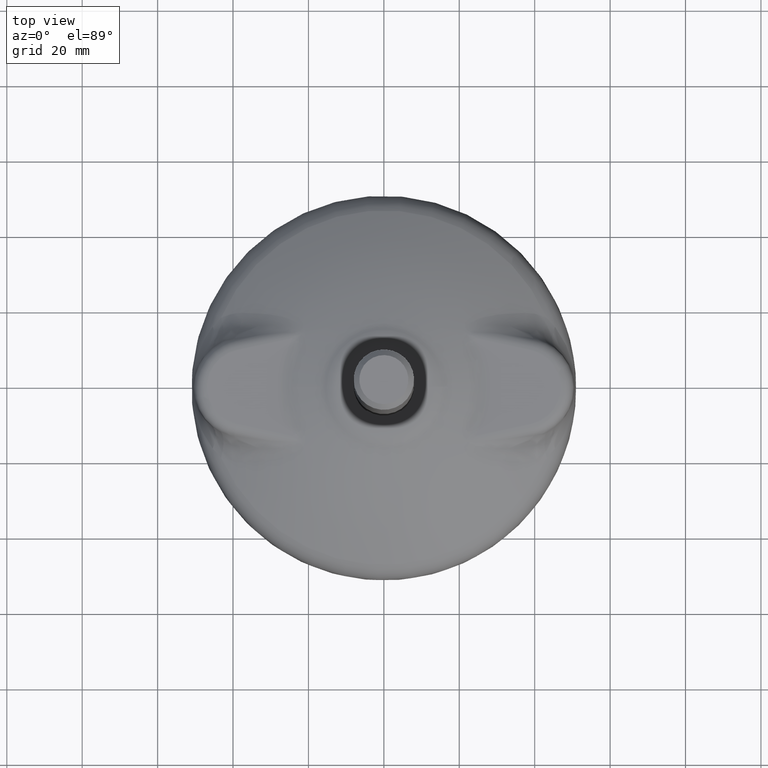
[diagram: clean part render]
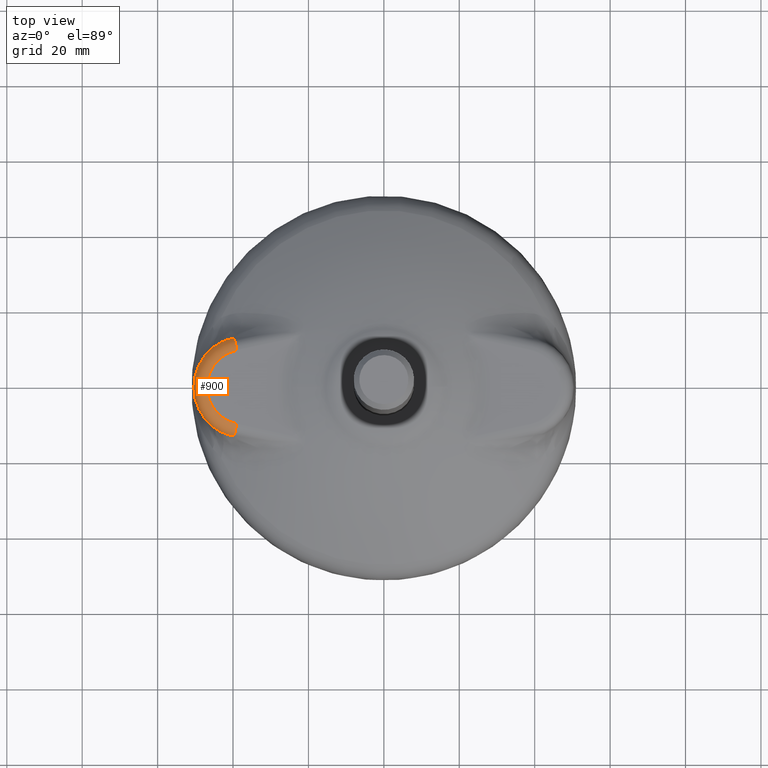
[diagram: same view with one face highlighted and labeled with its STEP entity id]
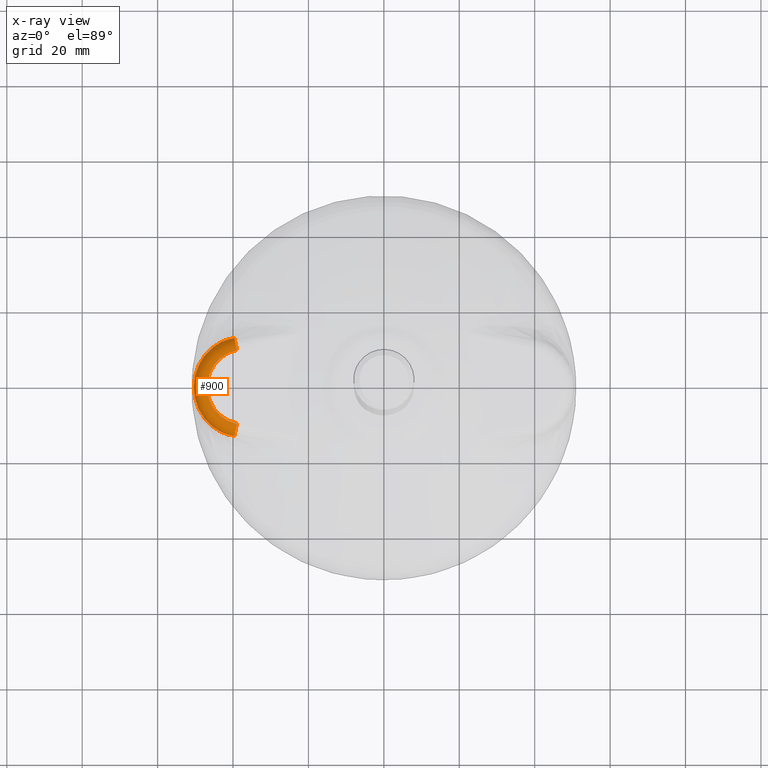
[diagram: x-ray of the same camera — body ghosted, the highlighted face saturated]
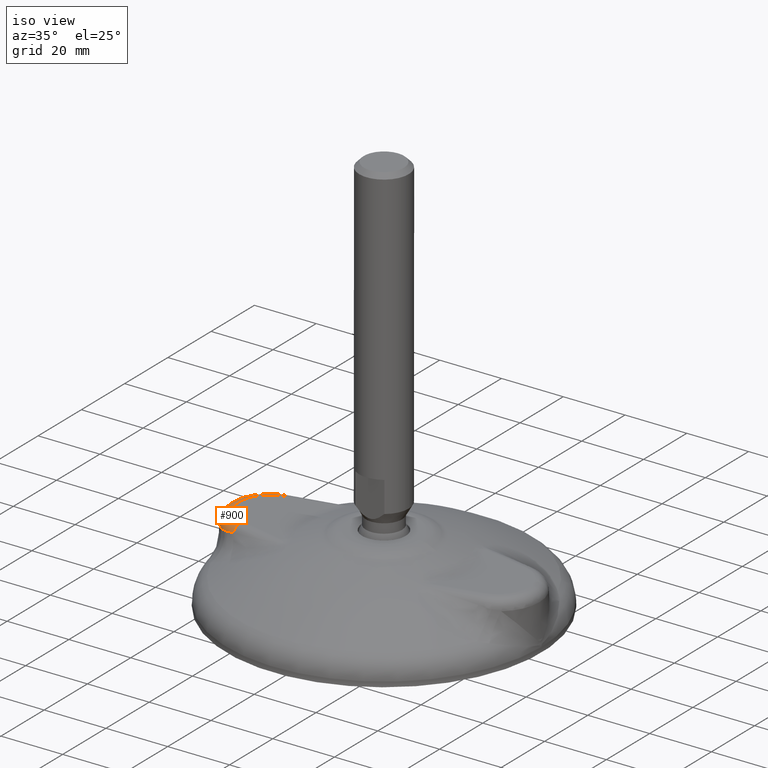
[diagram: same view with one face highlighted and labeled with its STEP entity id]
A machine part, top view. The second image highlights one B-rep face of the part: STEP entity #900.
The next image is the same camera in x-ray: the body ghosted, the highlighted face saturated — about 0% of this face is hidden behind the body in this view.
A second angle (iso view) of the same face is appended — the face is thin or edge-on in the first view.
In plain terms, the highlighted toroidal blend (fillet) surface has major radius 9.9975 mm and minor (blend) radius 3.5 mm.
Its self-contained STEP definition (entity closure, byte-faithful):
#37=TOROIDAL_SURFACE('',#997,9.9975100750238,3.50000000000001);
#56=B_SPLINE_CURVE_WITH_KNOTS('',3,(#1956,#1957,#1958,#1959,#1960,#1961,
#1962,#1963),.UNSPECIFIED.,.F.,.F.,(4,2,2,4),(0.,0.500000000000003,0.750000000000001,
1.),.UNSPECIFIED.);
#57=B_SPLINE_CURVE_WITH_KNOTS('',3,(#1964,#1965,#1966,#1967,#1968,#1969,
#1970,#1971,#1972,#1973),.UNSPECIFIED.,.F.,.F.,(4,2,2,2,4),(4.52284428680206E-15,
0.275275861480196,0.556591254267776,0.845321846807453,1.),.UNSPECIFIED.);
#58=B_SPLINE_CURVE_WITH_KNOTS('',3,(#1975,#1976,#1977,#1978,#1979,#1980,
#1981,#1982,#1983,#1984),.UNSPECIFIED.,.F.,.F.,(4,2,2,2,4),(0.,0.288180764931723,
0.571541113507704,0.845720962166973,1.),.UNSPECIFIED.);
#59=B_SPLINE_CURVE_WITH_KNOTS('',3,(#1985,#1986,#1987,#1988,#1989,#1990,
#1991,#1992),.UNSPECIFIED.,.F.,.F.,(4,2,2,4),(0.,0.25,0.5,1.),
 .UNSPECIFIED.);
#152=FACE_OUTER_BOUND('',#218,.T.);
#218=EDGE_LOOP('',(#584,#585,#586,#587,#588,#589,#590,#591));
#282=CIRCLE('',#990,9.99751007502379);
#283=CIRCLE('',#992,3.5);
#284=CIRCLE('',#994,3.5);
#285=CIRCLE('',#996,13.4953779695906);
#356=VERTEX_POINT('',#1376);
#359=VERTEX_POINT('',#1381);
#360=VERTEX_POINT('',#1385);
#361=VERTEX_POINT('',#1548);
#362=VERTEX_POINT('',#1720);
#363=VERTEX_POINT('',#1721);
#365=VERTEX_POINT('',#1955);
#366=VERTEX_POINT('',#1974);
#442=EDGE_CURVE('',#359,#356,#282,.T.);
#444=EDGE_CURVE('',#359,#360,#283,.T.);
#445=EDGE_CURVE('',#356,#361,#284,.T.);
#447=EDGE_CURVE('',#362,#363,#285,.T.);
#450=EDGE_CURVE('',#360,#365,#56,.T.);
#451=EDGE_CURVE('',#365,#363,#57,.T.);
#452=EDGE_CURVE('',#362,#366,#58,.T.);
#453=EDGE_CURVE('',#366,#361,#59,.T.);
#584=ORIENTED_EDGE('',*,*,#444,.T.);
#585=ORIENTED_EDGE('',*,*,#450,.T.);
#586=ORIENTED_EDGE('',*,*,#451,.T.);
#587=ORIENTED_EDGE('',*,*,#447,.F.);
#588=ORIENTED_EDGE('',*,*,#452,.T.);
#589=ORIENTED_EDGE('',*,*,#453,.T.);
#590=ORIENTED_EDGE('',*,*,#445,.F.);
#591=ORIENTED_EDGE('',*,*,#442,.F.);
#900=ADVANCED_FACE('',(#152),#37,.T.);
#990=AXIS2_PLACEMENT_3D('',#1383,#1124,#1125);
#992=AXIS2_PLACEMENT_3D('',#1546,#1128,#1129);
#994=AXIS2_PLACEMENT_3D('',#1549,#1132,#1133);
#996=AXIS2_PLACEMENT_3D('',#1722,#1136,#1137);
#997=AXIS2_PLACEMENT_3D('',#1954,#1138,#1139);
#1124=DIRECTION('center_axis',(0.,0.,1.));
#1125=DIRECTION('ref_axis',(1.,0.,0.));
#1128=DIRECTION('center_axis',(-0.978147600734719,-0.207911690813461,0.));
#1129=DIRECTION('ref_axis',(0.207911690813461,-0.978147600734719,0.));
#1132=DIRECTION('center_axis',(0.978147600734717,-0.207911690813471,0.));
#1133=DIRECTION('ref_axis',(0.207911690813471,0.978147600734717,0.));
#1136=DIRECTION('center_axis',(0.,0.,-1.));
#1137=DIRECTION('ref_axis',(-1.,0.,0.));
#1138=DIRECTION('center_axis',(-1.92029731072796E-15,-8.91297142992004E-16,
-1.));
#1139=DIRECTION('ref_axis',(-1.,0.,1.97409392124175E-15));
#1376=CARTESIAN_POINT('',(-38.9785992236229,-9.77904049320535,18.));
#1381=CARTESIAN_POINT('',(-38.9785992236228,9.77904049320588,18.));
#1383=CARTESIAN_POINT('Origin',(-36.9,1.729065E-13,18.));
#1385=CARTESIAN_POINT('',(-39.6508092109383,12.9415398394909,15.840422178905));
#1546=CARTESIAN_POINT('Origin',(-38.9785992236228,9.77904049320589,14.5));
#1548=CARTESIAN_POINT('',(-39.6508092109384,-12.9415398394903,15.840422178905));
#1549=CARTESIAN_POINT('Origin',(-38.9785992236229,-9.77904049320535,14.5));
#1720=CARTESIAN_POINT('',(-45.3161728056291,-10.5495621638006,14.6221482384588));
#1721=CARTESIAN_POINT('',(-45.3161728056289,10.5495621638013,14.6221482384588));
#1722=CARTESIAN_POINT('Origin',(-36.9,1.729065E-13,14.6221482384588));
#1954=CARTESIAN_POINT('Origin',(-36.9,1.70575359392799E-13,14.5));
#1955=CARTESIAN_POINT('',(-43.177831636212,11.8856961593077,15.1222012714982));
#1956=CARTESIAN_POINT('Ctrl Pts',(-39.6508092109383,12.9415398394909,15.840422178905));
#1957=CARTESIAN_POINT('Ctrl Pts',(-40.2643685165308,12.8651052942948,15.7130619363635));
#1958=CARTESIAN_POINT('Ctrl Pts',(-40.8648455038294,12.7372536191431,15.5894218539684));
#1959=CARTESIAN_POINT('Ctrl Pts',(-41.7471036689199,12.4725739153159,15.4096843504496));
#1960=CARTESIAN_POINT('Ctrl Pts',(-42.0380958107094,12.3721310075679,15.3507259515978));
#1961=CARTESIAN_POINT('Ctrl Pts',(-42.6138898258824,12.1467791847384,15.2347493119755));
#1962=CARTESIAN_POINT('Ctrl Pts',(-42.8986295414375,12.0218185054617,15.177745489979));
#1963=CARTESIAN_POINT('Ctrl Pts',(-43.177831636212,11.8856961593076,15.1222012714984));
#1964=CARTESIAN_POINT('Ctrl Pts',(-43.177831636212,11.8856961593077,15.1222012714982));
#1965=CARTESIAN_POINT('Ctrl Pts',(-43.3876872961685,11.7833830129467,15.0804527715974));
#1966=CARTESIAN_POINT('Ctrl Pts',(-43.5937658085503,11.6756013449992,15.0372839717313));
#1967=CARTESIAN_POINT('Ctrl Pts',(-44.0028809920432,11.4464491122138,14.9475853410869));
#1968=CARTESIAN_POINT('Ctrl Pts',(-44.2057518788398,11.3248316682944,14.9010026022961));
#1969=CARTESIAN_POINT('Ctrl Pts',(-44.6089169523763,11.0663990788504,14.8046020957959));
#1970=CARTESIAN_POINT('Ctrl Pts',(-44.8090024463859,10.9292672632979,14.7547315622159));
#1971=CARTESIAN_POINT('Ctrl Pts',(-45.109871163115,10.708861127797,14.6769888385994));
#1972=CARTESIAN_POINT('Ctrl Pts',(-45.2136278319578,10.6301412312591,14.649653416983));
#1973=CARTESIAN_POINT('Ctrl Pts',(-45.3161728056289,10.5495621638014,14.6221482384588));
#1974=CARTESIAN_POINT('',(-43.1778316362122,-11.885696159307,15.1222012714984));
#1975=CARTESIAN_POINT('Ctrl Pts',(-45.3161728056291,-10.5495621638006,14.6221482384588));
#1976=CARTESIAN_POINT('Ctrl Pts',(-45.1251213329905,-10.6996889710981,14.6733931183794));
#1977=CARTESIAN_POINT('Ctrl Pts',(-44.9298667241045,-10.8433631753838,14.7240481551469));
#1978=CARTESIAN_POINT('Ctrl Pts',(-44.5344413618794,-11.1158313750223,14.8227557989483));
#1979=CARTESIAN_POINT('Ctrl Pts',(-44.334407361,-11.2448345977296,14.8708375657376));
#1980=CARTESIAN_POINT('Ctrl Pts',(-43.933028234981,-11.4869622708221,14.9632296574079));
#1981=CARTESIAN_POINT('Ctrl Pts',(-43.7319353520908,-11.6004662560267,15.00761163278));
#1982=CARTESIAN_POINT('Ctrl Pts',(-43.411872736428,-11.7692945195196,15.0749592997875));
#1983=CARTESIAN_POINT('Ctrl Pts',(-43.295445760196,-11.8283545032193,15.0988032214076));
#1984=CARTESIAN_POINT('Ctrl Pts',(-43.1778316362122,-11.8856961593071,15.1222012714983));
#1985=CARTESIAN_POINT('Ctrl Pts',(-43.1778316362122,-11.885696159307,15.1222012714984));
#1986=CARTESIAN_POINT('Ctrl Pts',(-42.8986295414376,-12.0218185054611,15.177745489979));
#1987=CARTESIAN_POINT('Ctrl Pts',(-42.6138898258826,-12.1467791847378,15.2347493119755));
#1988=CARTESIAN_POINT('Ctrl Pts',(-42.0380958107095,-12.3721310075673,15.3507259515978));
#1989=CARTESIAN_POINT('Ctrl Pts',(-41.74710366892,-12.4725739153153,15.4096843504496));
#1990=CARTESIAN_POINT('Ctrl Pts',(-40.8648455038295,-12.7372536191425,15.5894218539684));
#1991=CARTESIAN_POINT('Ctrl Pts',(-40.2643685165309,-12.8651052942942,15.7130619363635));
#1992=CARTESIAN_POINT('Ctrl Pts',(-39.6508092109384,-12.9415398394903,15.840422178905));